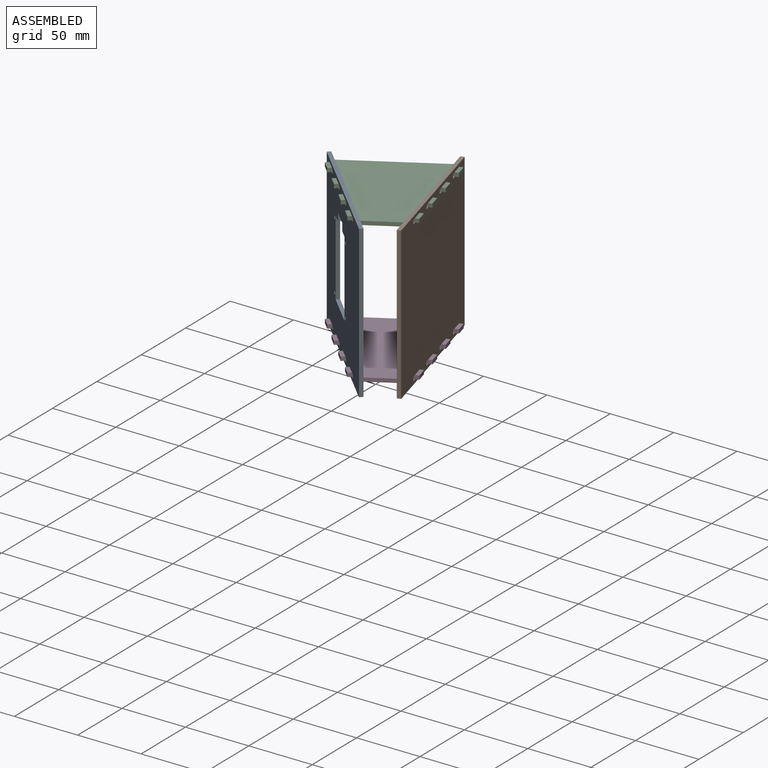
[diagram: assembled view]
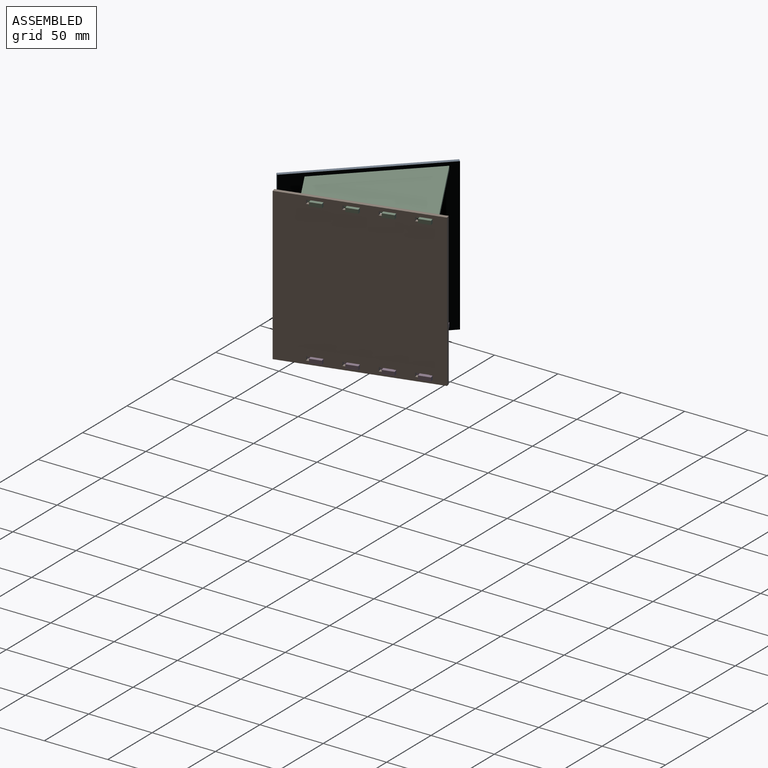
[diagram: assembled view, second angle]
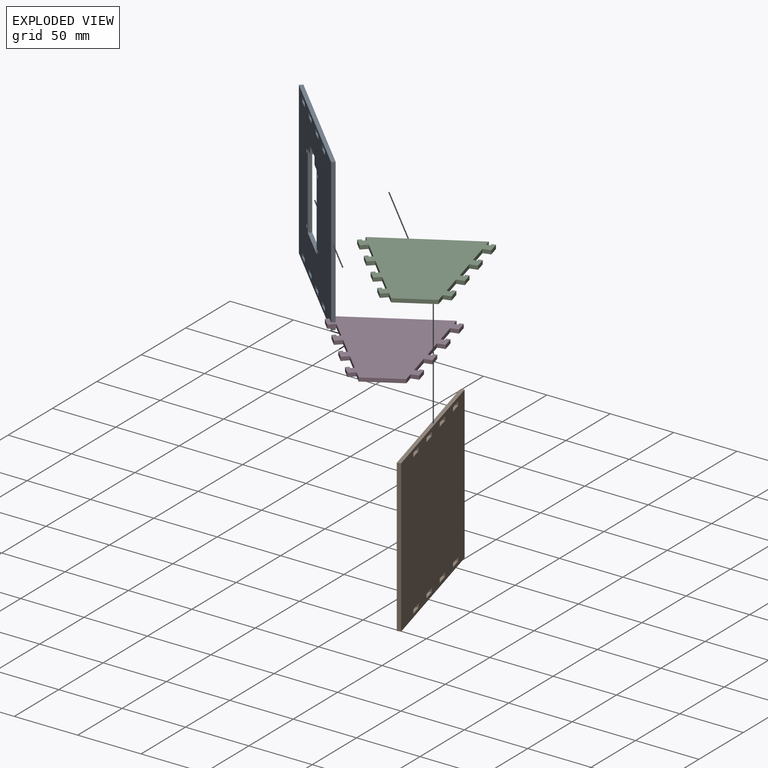
[diagram: exploded view]
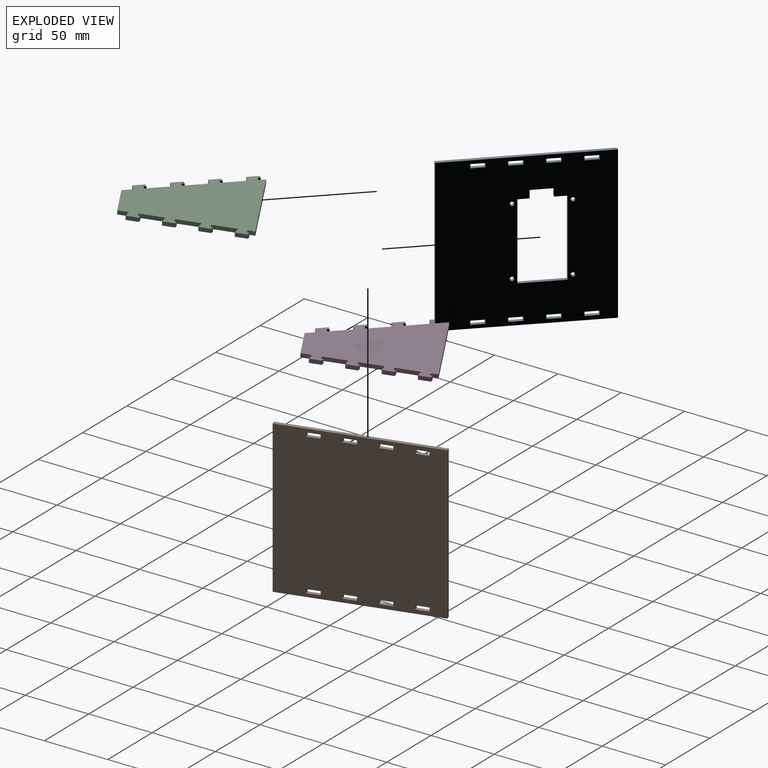
[diagram: exploded view, second angle]
ASSEMBLY  parts=4 mates=9
PART A: 50 faces, bbox 120x120x3 mm
  f0: plane 3x3mm, normal (0,1,0), area 9mm2, adj f1,f35,f36,f37
  f1: plane 10x3mm, normal (1,0,0), area 30mm2, adj f0,f2,f36,f37
  f2: plane 3x3mm, normal (0,-1,0), area 9mm2, adj f1,f35,f36,f37
  f3: plane 10x3mm, normal (1,0,0), area 30mm2, adj f4,f27,f36,f37
  f4: plane 3x3mm, normal (0,-1,0), area 9mm2, adj f3,f5,f36,f37
  f5: plane 10x3mm, normal (-1,0,0), area 30mm2, adj f4,f27,f36,f37
  f6: plane 10x3mm, normal (1,0,0), area 30mm2, adj f7,f28,f36,f37
  f7: plane 3x3mm, normal (0,-1,0), area 9mm2, adj f6,f8,f36,f37
  f8: plane 10x3mm, normal (-1,0,0), area 30mm2, adj f7,f28,f36,f37
  f9: plane 10x3mm, normal (1,0,0), area 30mm2, adj f10,f29,f36,f37
  f10: plane 3x3mm, normal (0,-1,0), area 9mm2, adj f9,f11,f36,f37
  f11: plane 10x3mm, normal (-1,0,0), area 30mm2, adj f10,f29,f36,f37
  f12: plane 3x3mm, normal (0,1,0), area 9mm2, adj f13,f30,f36,f37
  f13: plane 10x3mm, normal (1,0,0), area 30mm2, adj f12,f14,f36,f37
  f14: plane 3x3mm, normal (0,-1,0), area 9mm2, adj f13,f30,f36,f37
  f15: plane 3x3mm, normal (0,1,0), area 9mm2, adj f16,f31,f36,f37
  f16: plane 10x3mm, normal (1,0,0), area 30mm2, adj f15,f17,f36,f37
  f17: plane 3x3mm, normal (0,-1,0), area 9mm2, adj f16,f31,f36,f37
  f18: plane 3x3mm, normal (0,1,0), area 9mm2, adj f19,f32,f36,f37
  f19: plane 10x3mm, normal (1,0,0), area 30mm2, adj f18,f20,f36,f37
  f20: plane 3x3mm, normal (0,-1,0), area 9mm2, adj f19,f32,f36,f37
  f21: plane 10x3mm, normal (-1,0,0), area 30mm2, adj f22,f33,f36,f37
  f22: plane 3x3mm, normal (0,1,0), area 9mm2, adj f21,f23,f36,f37
  f23: plane 10x3mm, normal (1,0,0), area 30mm2, adj f22,f33,f36,f37
  f24: plane 120x3mm, normal (-1,0,0), area 360mm2, adj f25,f34,f36,f37
  f25: plane 120x3mm, normal (0,-1,0), area 360mm2, adj f24,f26,f36,f37
  f26: plane 120x3mm, normal (1,0,0), area 360mm2, adj f25,f34,f36,f37
  f27: plane 3x3mm, normal (0,1,0), area 9mm2, adj f3,f5,f36,f37
  f28: plane 3x3mm, normal (0,1,0), area 9mm2, adj f6,f8,f36,f37
  f29: plane 3x3mm, normal (0,1,0), area 9mm2, adj f9,f11,f36,f37
  f30: plane 10x3mm, normal (-1,0,0), area 30mm2, adj f12,f14,f36,f37
  f31: plane 10x3mm, normal (-1,0,0), area 30mm2, adj f15,f17,f36,f37
  f32: plane 10x3mm, normal (-1,0,0), area 30mm2, adj f18,f20,f36,f37
  f33: plane 3x3mm, normal (0,-1,0), area 9mm2, adj f21,f23,f36,f37
  f34: plane 120x3mm, normal (0,1,0), area 360mm2, adj f24,f26,f36,f37
  f35: plane 10x3mm, normal (-1,0,0), area 30mm2, adj f0,f2,f36,f37
  f36: plane 120x120mm, normal (0,0,1), area 12055.7mm2, adj f0,f1,f2,f3,f4,f5,f6,f7
  f37: plane 120x120mm, normal (0,0,-1), area 12055.7mm2, adj f0,f1,f2,f3,f4,f5,f6,f7
  f38: cylinder r=1.5mm len=3mm, axis (0,0,1), area 28.3mm2, adj f36,f37
  f39: plane 60x3mm, normal (0,1,0), area 180mm2, adj f36,f37,f40,f44
  f40: plane 33x3mm, normal (-1,0,0), area 99mm2, adj f36,f37,f39,f41
  f41: plane 60x3mm, normal (0,-1,0), area 180mm2, adj f36,f37,f40,f42
  f42: plane 9x3mm, normal (1,0,0), area 27mm2, adj f36,f37,f41,f43
  f43: plane 6x3mm, normal (0,-1,0), area 18mm2, adj f36,f37,f42,f45
  f44: plane 8x3mm, normal (1,0,0), area 24mm2, adj f36,f37,f39,f46
  f45: plane 16x3mm, normal (1,0,0), area 48mm2, adj f36,f37,f43,f46
  f46: plane 6x3mm, normal (0,1,0), area 18mm2, adj f36,f37,f44,f45
  f47: cylinder r=1.5mm len=3mm, axis (0,0,1), area 28.3mm2, adj f36,f37
  f48: cylinder r=1.5mm len=3mm, axis (0,0,1), area 28.3mm2, adj f36,f37
  f49: cylinder r=1.5mm len=3mm, axis (0,0,1), area 28.3mm2, adj f36,f37
PART B: 38 faces, bbox 120x120x3 mm
  f0: plane 3x3mm, normal (0,1,0), area 9mm2, adj f1,f35,f36,f37
  f1: plane 10x3mm, normal (1,0,0), area 30mm2, adj f0,f2,f36,f37
  f2: plane 3x3mm, normal (0,-1,0), area 9mm2, adj f1,f35,f36,f37
  f3: plane 10x3mm, normal (1,0,0), area 30mm2, adj f4,f27,f36,f37
  f4: plane 3x3mm, normal (0,-1,0), area 9mm2, adj f3,f5,f36,f37
  f5: plane 10x3mm, normal (-1,0,0), area 30mm2, adj f4,f27,f36,f37
  f6: plane 10x3mm, normal (1,0,0), area 30mm2, adj f7,f28,f36,f37
  f7: plane 3x3mm, normal (0,-1,0), area 9mm2, adj f6,f8,f36,f37
  f8: plane 10x3mm, normal (-1,0,0), area 30mm2, adj f7,f28,f36,f37
  f9: plane 10x3mm, normal (1,0,0), area 30mm2, adj f10,f29,f36,f37
  f10: plane 3x3mm, normal (0,-1,0), area 9mm2, adj f9,f11,f36,f37
  f11: plane 10x3mm, normal (-1,0,0), area 30mm2, adj f10,f29,f36,f37
  f12: plane 3x3mm, normal (0,1,0), area 9mm2, adj f13,f30,f36,f37
  f13: plane 10x3mm, normal (1,0,0), area 30mm2, adj f12,f14,f36,f37
  f14: plane 3x3mm, normal (0,-1,0), area 9mm2, adj f13,f30,f36,f37
  f15: plane 3x3mm, normal (0,1,0), area 9mm2, adj f16,f31,f36,f37
  f16: plane 10x3mm, normal (1,0,0), area 30mm2, adj f15,f17,f36,f37
  f17: plane 3x3mm, normal (0,-1,0), area 9mm2, adj f16,f31,f36,f37
  f18: plane 3x3mm, normal (0,1,0), area 9mm2, adj f19,f32,f36,f37
  f19: plane 10x3mm, normal (1,0,0), area 30mm2, adj f18,f20,f36,f37
  f20: plane 3x3mm, normal (0,-1,0), area 9mm2, adj f19,f32,f36,f37
  f21: plane 10x3mm, normal (-1,0,0), area 30mm2, adj f22,f33,f36,f37
  f22: plane 3x3mm, normal (0,1,0), area 9mm2, adj f21,f23,f36,f37
  f23: plane 10x3mm, normal (1,0,0), area 30mm2, adj f22,f33,f36,f37
  f24: plane 120x3mm, normal (-1,0,0), area 360mm2, adj f25,f34,f36,f37
  f25: plane 120x3mm, normal (0,-1,0), area 360mm2, adj f24,f26,f36,f37
  f26: plane 120x3mm, normal (1,0,0), area 360mm2, adj f25,f34,f36,f37
  f27: plane 3x3mm, normal (0,1,0), area 9mm2, adj f3,f5,f36,f37
  f28: plane 3x3mm, normal (0,1,0), area 9mm2, adj f6,f8,f36,f37
  f29: plane 3x3mm, normal (0,1,0), area 9mm2, adj f9,f11,f36,f37
  f30: plane 10x3mm, normal (-1,0,0), area 30mm2, adj f12,f14,f36,f37
  f31: plane 10x3mm, normal (-1,0,0), area 30mm2, adj f15,f17,f36,f37
  f32: plane 10x3mm, normal (-1,0,0), area 30mm2, adj f18,f20,f36,f37
  f33: plane 3x3mm, normal (0,-1,0), area 9mm2, adj f21,f23,f36,f37
  f34: plane 120x3mm, normal (0,1,0), area 360mm2, adj f24,f26,f36,f37
  f35: plane 10x3mm, normal (-1,0,0), area 30mm2, adj f0,f2,f36,f37
  f36: plane 120x120mm, normal (0,0,1), area 14160mm2, adj f0,f1,f2,f3,f4,f5,f6,f7
  f37: plane 120x120mm, normal (0,0,-1), area 14160mm2, adj f0,f1,f2,f3,f4,f5,f6,f7
PART C: 54 faces, bbox 90.1x91.8x3 mm
  f0: plane 5.8x3mm, normal (0.26,-0.97,0), area 18mm2, adj f1,f51,f52,f53
  f1: plane 7.73x3mm, normal (-0.97,-0.26,0), area 24mm2, adj f0,f2,f52,f53
  f2: plane 30.89x3mm, normal (0,-1,0), area 92.7mm2, adj f1,f3,f52,f53
  f3: plane 7.73x3mm, normal (0.97,-0.26,0), area 24mm2, adj f2,f4,f52,f53
  f4: plane 5.8x3mm, normal (-0.26,-0.97,0), area 18mm2, adj f3,f5,f52,f53
  f5: plane 8.69x3mm, normal (0.97,-0.26,0), area 27mm2, adj f4,f6,f52,f53
  f6: plane 3x2.9mm, normal (0.26,0.97,0), area 9mm2, adj f5,f7,f52,f53
  f7: plane 3x1.93mm, normal (-0.97,0.26,0), area 6mm2, adj f6,f8,f52,f53
  f8: plane 3x2.9mm, normal (0.26,0.97,0), area 9mm2, adj f7,f9,f52,f53
  f9: plane 17.39x4.66mm, normal (0.97,-0.26,0), area 54mm2, adj f8,f10,f52,f53
  f10: plane 5.8x3mm, normal (-0.26,-0.97,0), area 18mm2, adj f9,f11,f52,f53
  f11: plane 8.69x3mm, normal (0.97,-0.26,0), area 27mm2, adj f10,f12,f52,f53
  f12: plane 3x2.9mm, normal (0.26,0.97,0), area 9mm2, adj f11,f13,f52,f53
  f13: plane 3x1.93mm, normal (-0.97,0.26,0), area 6mm2, adj f12,f14,f52,f53
  f14: plane 3x2.9mm, normal (0.26,0.97,0), area 9mm2, adj f13,f15,f52,f53
  f15: plane 17.39x4.66mm, normal (0.97,-0.26,0), area 54mm2, adj f14,f16,f52,f53
  f16: plane 5.8x3mm, normal (-0.26,-0.97,0), area 18mm2, adj f15,f17,f52,f53
  f17: plane 8.69x3mm, normal (0.97,-0.26,0), area 27mm2, adj f16,f18,f52,f53
  f18: plane 3x2.9mm, normal (0.26,0.97,0), area 9mm2, adj f17,f19,f52,f53
  f19: plane 3x1.93mm, normal (-0.97,0.26,0), area 6mm2, adj f18,f20,f52,f53
  f20: plane 3x2.9mm, normal (0.26,0.97,0), area 9mm2, adj f19,f21,f52,f53
  f21: plane 17.39x4.66mm, normal (0.97,-0.26,0), area 54mm2, adj f20,f22,f52,f53
  f22: plane 5.8x3mm, normal (-0.26,-0.97,0), area 18mm2, adj f21,f23,f52,f53
  f23: plane 8.69x3mm, normal (0.97,-0.26,0), area 27mm2, adj f22,f24,f52,f53
  f24: plane 3x2.9mm, normal (0.26,0.97,0), area 9mm2, adj f23,f25,f52,f53
  f25: plane 3x1.93mm, normal (-0.97,0.26,0), area 6mm2, adj f24,f26,f52,f53
  f26: plane 3x2.9mm, normal (0.26,0.97,0), area 9mm2, adj f25,f27,f52,f53
  f27: plane 4.83x3mm, normal (0.97,-0.26,0), area 15mm2, adj f26,f28,f52,f53
  f28: plane 80.06x3mm, normal (0,1,0), area 240.2mm2, adj f27,f29,f52,f53
  f29: plane 4.83x3mm, normal (-0.97,-0.26,0), area 15mm2, adj f28,f30,f52,f53
  f30: plane 3x2.9mm, normal (-0.26,0.97,0), area 9mm2, adj f29,f31,f52,f53
  f31: plane 3x1.93mm, normal (0.97,0.26,0), area 6mm2, adj f30,f32,f52,f53
  f32: plane 3x2.9mm, normal (-0.26,0.97,0), area 9mm2, adj f31,f33,f52,f53
  f33: plane 8.69x3mm, normal (-0.97,-0.26,0), area 27mm2, adj f32,f34,f52,f53
  f34: plane 5.8x3mm, normal (0.26,-0.97,0), area 18mm2, adj f33,f35,f52,f53
  f35: plane 17.39x4.66mm, normal (-0.97,-0.26,0), area 54mm2, adj f34,f36,f52,f53
  f36: plane 3x2.9mm, normal (-0.26,0.97,0), area 9mm2, adj f35,f37,f52,f53
  f37: plane 3x1.93mm, normal (0.97,0.26,0), area 6mm2, adj f36,f38,f52,f53
  f38: plane 3x2.9mm, normal (-0.26,0.97,0), area 9mm2, adj f37,f39,f52,f53
  f39: plane 8.69x3mm, normal (-0.97,-0.26,0), area 27mm2, adj f38,f40,f52,f53
  f40: plane 5.8x3mm, normal (0.26,-0.97,0), area 18mm2, adj f39,f41,f52,f53
  f41: plane 17.39x4.66mm, normal (-0.97,-0.26,0), area 54mm2, adj f40,f42,f52,f53
  f42: plane 3x2.9mm, normal (-0.26,0.97,0), area 9mm2, adj f41,f43,f52,f53
  f43: plane 3x1.93mm, normal (0.97,0.26,0), area 6mm2, adj f42,f44,f52,f53
  f44: plane 3x2.9mm, normal (-0.26,0.97,0), area 9mm2, adj f43,f45,f52,f53
  f45: plane 8.69x3mm, normal (-0.97,-0.26,0), area 27mm2, adj f44,f46,f52,f53
  f46: plane 5.8x3mm, normal (0.26,-0.97,0), area 18mm2, adj f45,f47,f52,f53
  f47: plane 17.39x4.66mm, normal (-0.97,-0.26,0), area 54mm2, adj f46,f48,f52,f53
  f48: plane 3x2.9mm, normal (-0.26,0.97,0), area 9mm2, adj f47,f49,f52,f53
  f49: plane 3x1.93mm, normal (0.97,0.26,0), area 6mm2, adj f48,f50,f52,f53
  f50: plane 3x2.9mm, normal (-0.26,0.97,0), area 9mm2, adj f49,f51,f52,f53
  f51: plane 8.69x3mm, normal (-0.97,-0.26,0), area 27mm2, adj f0,f50,f52,f53
  f52: plane 91.76x90.1mm, normal (0,0,1), area 5474.5mm2, adj f0,f1,f2,f3,f4,f5,f6,f7
  f53: plane 91.76x90.1mm, normal (0,0,-1), area 5474.5mm2, adj f0,f1,f2,f3,f4,f5,f6,f7
PART D: 54 faces, bbox 90.1x91.8x3 mm
  f0: plane 5.8x3mm, normal (0.26,-0.97,0), area 18mm2, adj f1,f51,f52,f53
  f1: plane 7.73x3mm, normal (-0.97,-0.26,0), area 24mm2, adj f0,f2,f52,f53
  f2: plane 30.89x3mm, normal (0,-1,0), area 92.7mm2, adj f1,f3,f52,f53
  f3: plane 7.73x3mm, normal (0.97,-0.26,0), area 24mm2, adj f2,f4,f52,f53
  f4: plane 5.8x3mm, normal (-0.26,-0.97,0), area 18mm2, adj f3,f5,f52,f53
  f5: plane 8.69x3mm, normal (0.97,-0.26,0), area 27mm2, adj f4,f6,f52,f53
  f6: plane 3x2.9mm, normal (0.26,0.97,0), area 9mm2, adj f5,f7,f52,f53
  f7: plane 3x1.93mm, normal (-0.97,0.26,0), area 6mm2, adj f6,f8,f52,f53
  f8: plane 3x2.9mm, normal (0.26,0.97,0), area 9mm2, adj f7,f9,f52,f53
  f9: plane 17.39x4.66mm, normal (0.97,-0.26,0), area 54mm2, adj f8,f10,f52,f53
  f10: plane 5.8x3mm, normal (-0.26,-0.97,0), area 18mm2, adj f9,f11,f52,f53
  f11: plane 8.69x3mm, normal (0.97,-0.26,0), area 27mm2, adj f10,f12,f52,f53
  f12: plane 3x2.9mm, normal (0.26,0.97,0), area 9mm2, adj f11,f13,f52,f53
  f13: plane 3x1.93mm, normal (-0.97,0.26,0), area 6mm2, adj f12,f14,f52,f53
  f14: plane 3x2.9mm, normal (0.26,0.97,0), area 9mm2, adj f13,f15,f52,f53
  f15: plane 17.39x4.66mm, normal (0.97,-0.26,0), area 54mm2, adj f14,f16,f52,f53
  f16: plane 5.8x3mm, normal (-0.26,-0.97,0), area 18mm2, adj f15,f17,f52,f53
  f17: plane 8.69x3mm, normal (0.97,-0.26,0), area 27mm2, adj f16,f18,f52,f53
  f18: plane 3x2.9mm, normal (0.26,0.97,0), area 9mm2, adj f17,f19,f52,f53
  f19: plane 3x1.93mm, normal (-0.97,0.26,0), area 6mm2, adj f18,f20,f52,f53
  f20: plane 3x2.9mm, normal (0.26,0.97,0), area 9mm2, adj f19,f21,f52,f53
  f21: plane 17.39x4.66mm, normal (0.97,-0.26,0), area 54mm2, adj f20,f22,f52,f53
  f22: plane 5.8x3mm, normal (-0.26,-0.97,0), area 18mm2, adj f21,f23,f52,f53
  f23: plane 8.69x3mm, normal (0.97,-0.26,0), area 27mm2, adj f22,f24,f52,f53
  f24: plane 3x2.9mm, normal (0.26,0.97,0), area 9mm2, adj f23,f25,f52,f53
  f25: plane 3x1.93mm, normal (-0.97,0.26,0), area 6mm2, adj f24,f26,f52,f53
  f26: plane 3x2.9mm, normal (0.26,0.97,0), area 9mm2, adj f25,f27,f52,f53
  f27: plane 4.83x3mm, normal (0.97,-0.26,0), area 15mm2, adj f26,f28,f52,f53
  f28: plane 80.06x3mm, normal (0,1,0), area 240.2mm2, adj f27,f29,f52,f53
  f29: plane 4.83x3mm, normal (-0.97,-0.26,0), area 15mm2, adj f28,f30,f52,f53
  f30: plane 3x2.9mm, normal (-0.26,0.97,0), area 9mm2, adj f29,f31,f52,f53
  f31: plane 3x1.93mm, normal (0.97,0.26,0), area 6mm2, adj f30,f32,f52,f53
  f32: plane 3x2.9mm, normal (-0.26,0.97,0), area 9mm2, adj f31,f33,f52,f53
  f33: plane 8.69x3mm, normal (-0.97,-0.26,0), area 27mm2, adj f32,f34,f52,f53
  f34: plane 5.8x3mm, normal (0.26,-0.97,0), area 18mm2, adj f33,f35,f52,f53
  f35: plane 17.39x4.66mm, normal (-0.97,-0.26,0), area 54mm2, adj f34,f36,f52,f53
  f36: plane 3x2.9mm, normal (-0.26,0.97,0), area 9mm2, adj f35,f37,f52,f53
  f37: plane 3x1.93mm, normal (0.97,0.26,0), area 6mm2, adj f36,f38,f52,f53
  f38: plane 3x2.9mm, normal (-0.26,0.97,0), area 9mm2, adj f37,f39,f52,f53
  f39: plane 8.69x3mm, normal (-0.97,-0.26,0), area 27mm2, adj f38,f40,f52,f53
  f40: plane 5.8x3mm, normal (0.26,-0.97,0), area 18mm2, adj f39,f41,f52,f53
  f41: plane 17.39x4.66mm, normal (-0.97,-0.26,0), area 54mm2, adj f40,f42,f52,f53
  f42: plane 3x2.9mm, normal (-0.26,0.97,0), area 9mm2, adj f41,f43,f52,f53
  f43: plane 3x1.93mm, normal (0.97,0.26,0), area 6mm2, adj f42,f44,f52,f53
  f44: plane 3x2.9mm, normal (-0.26,0.97,0), area 9mm2, adj f43,f45,f52,f53
  f45: plane 8.69x3mm, normal (-0.97,-0.26,0), area 27mm2, adj f44,f46,f52,f53
  f46: plane 5.8x3mm, normal (0.26,-0.97,0), area 18mm2, adj f45,f47,f52,f53
  f47: plane 17.39x4.66mm, normal (-0.97,-0.26,0), area 54mm2, adj f46,f48,f52,f53
  f48: plane 3x2.9mm, normal (-0.26,0.97,0), area 9mm2, adj f47,f49,f52,f53
  f49: plane 3x1.93mm, normal (0.97,0.26,0), area 6mm2, adj f48,f50,f52,f53
  f50: plane 3x2.9mm, normal (-0.26,0.97,0), area 9mm2, adj f49,f51,f52,f53
  f51: plane 8.69x3mm, normal (-0.97,-0.26,0), area 27mm2, adj f0,f50,f52,f53
  f52: plane 91.76x90.1mm, normal (0,0,1), area 5474.5mm2, adj f0,f1,f2,f3,f4,f5,f6,f7
  f53: plane 91.76x90.1mm, normal (0,0,-1), area 5474.5mm2, adj f0,f1,f2,f3,f4,f5,f6,f7
PLACE A rot(axis=(-0.36,0.86,0.36),98.4deg) t=(-230.49,-28.53,-32.89)mm
PLACE B rot(axis=(0.13,-0.98,0.13),91deg) t=(-180.75,0.18,-51.78)mm
PLACE C rot(axis=(0,0,1),30deg) t=(-411.98,-118.85,-62.95)mm
PLACE D rot(axis=(0,0,1),30deg) t=(-498.58,-168.85,-174.61)mm
MATE planar D.f53 <-> A.f31  axis (0,0,-1) through (-212.78,-1.77,-174.61)mm
MATE planar C.f47 <-> A.f36  axis (-0.71,-0.71,0) through (-217,-37.78,-61.45)mm
MATE planar C.f52 <-> A.f9  axis (0,0,1) through (-205.68,-49.1,-59.95)mm
MATE planar A.f14 <-> D.f30  axis (0.71,-0.71,0) through (-264.72,7.83,-172.78)mm
MATE planar A.f10 <-> C.f48  axis (0.71,-0.71,0) through (-211.69,-45.21,-62.95)mm
MATE planar D.f53 <-> B.f6  axis (0,0,-1) through (-212.78,-1.77,-174.61)mm
MATE planar C.f8 <-> B.f17  axis (-0.26,0.97,0) through (-175.71,-24.43,-61.45)mm
MATE planar B.f36 <-> D.f9  axis (-0.97,-0.26,0) through (-184.12,1.17,-117.39)mm
MATE planar A.f36 <-> D.f35  axis (0.71,0.71,0) through (-228.36,-26.42,-117.5)mm
